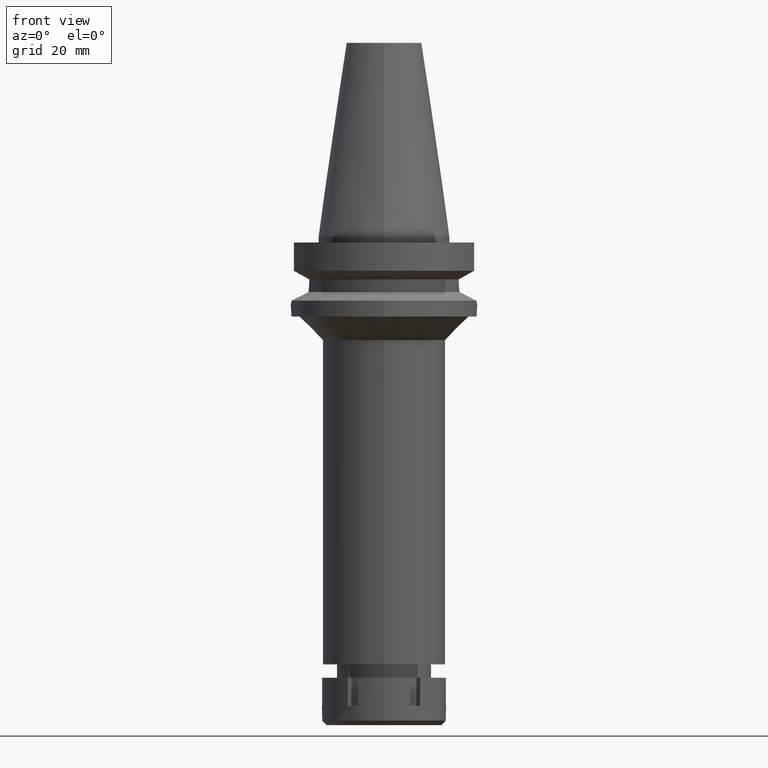
[diagram: clean part render]
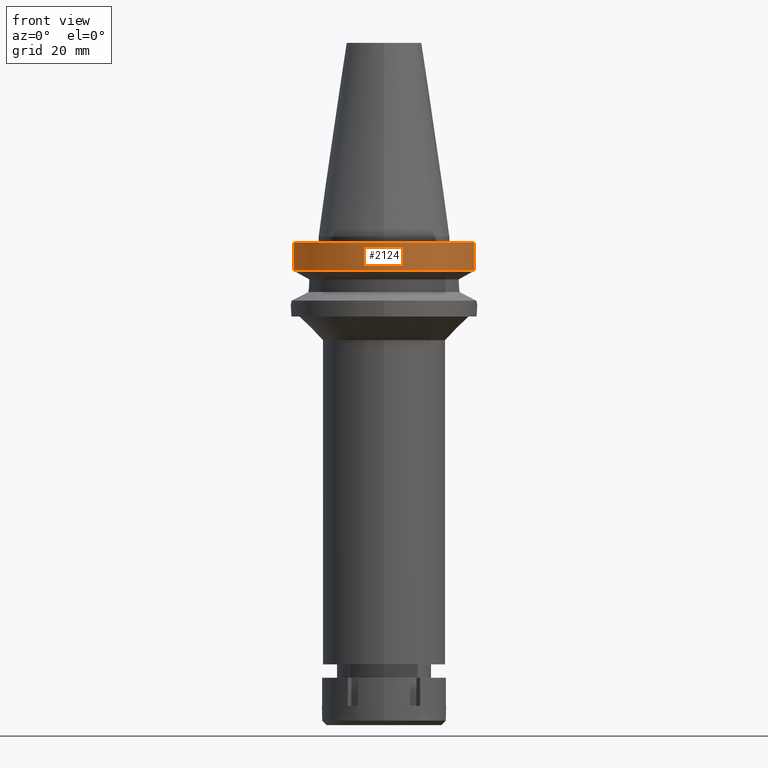
[diagram: same view with one face highlighted and labeled with its STEP entity id]
A machine part, front view. The second image highlights one B-rep face of the part: STEP entity #2124.
In plain terms, the highlighted cylindrical surface (partial cylindrical patch) has radius 31.5 mm, axis along (0, 0, -1).
Its self-contained STEP definition (entity closure, byte-faithful):
#275 = DIRECTION ( 'NONE',  ( 0.0000000000000000000, 0.0000000000000000000, -1.000000000000000000 ) ) ;
#556 = DIRECTION ( 'NONE',  ( 0.0000000000000000000, -1.000000000000000000, 0.0000000000000000000 ) ) ;
#604 = CYLINDRICAL_SURFACE ( 'NONE', #2040, 31.50000000000000000 ) ;
#607 = VERTEX_POINT ( 'NONE', #2176 ) ;
#668 = DIRECTION ( 'NONE',  ( -1.145023312779999569E-07, -4.331741411846998158E-07, -0.9999999999998997469 ) ) ;
#676 = DIRECTION ( 'NONE',  ( 0.0000000000000000000, 0.0000000000000000000, 1.000000000000000000 ) ) ;
#747 = LINE ( 'NONE', #2729, #2969 ) ;
#846 = CARTESIAN_POINT ( 'NONE',  ( 0.0000000000000000000, 2.161746529854999700E-14, 76.52000000000001023 ) ) ;
#934 = EDGE_CURVE ( 'NONE', #607, #1590, #3200, .T. ) ;
#952 = CARTESIAN_POINT ( 'NONE',  ( -30.45402291358000113, -8.049999278195999253, -11.56551215380000031 ) ) ;
#1157 = AXIS2_PLACEMENT_3D ( 'NONE', #3121, #2866, #2269 ) ;
#1203 = CARTESIAN_POINT ( 'NONE',  ( 0.0000000000000000000, 1.065333950388000029E-14, -11.56550565266999975 ) ) ;
#1254 = CIRCLE ( 'NONE', #2848, 31.50000000000000000 ) ;
#1571 = DIRECTION ( 'NONE',  ( 1.994621289529988906E-08, -7.545894673464957228E-08, 0.9999999999999968914 ) ) ;
#1576 = VERTEX_POINT ( 'NONE', #3273 ) ;
#1590 = VERTEX_POINT ( 'NONE', #2720 ) ;
#1803 = EDGE_CURVE ( 'NONE', #607, #1576, #1982, .T. ) ;
#1897 = VERTEX_POINT ( 'NONE', #952 ) ;
#1982 = CIRCLE ( 'NONE', #1157, 31.50000000000000000 ) ;
#2030 = VECTOR ( 'NONE', #668, 999.9999999999998863 ) ;
#2040 = AXIS2_PLACEMENT_3D ( 'NONE', #846, #275, #556 ) ;
#2061 = ORIENTED_EDGE ( 'NONE', *, *, #2288, .T. ) ;
#2062 = CARTESIAN_POINT ( 'NONE',  ( 30.45402272279000044, -8.050000000000000711, -2.000000000000000000 ) ) ;
#2124 = ADVANCED_FACE ( 'NONE', ( #2239 ), #604, .T. ) ;
#2176 = CARTESIAN_POINT ( 'NONE',  ( 30.45402272279000044, -8.050000000000000711, -2.000000000000000000 ) ) ;
#2182 = EDGE_LOOP ( 'NONE', ( #2957, #2061, #2351, #2356 ) ) ;
#2239 = FACE_OUTER_BOUND ( 'NONE', #2182, .T. ) ;
#2269 = DIRECTION ( 'NONE',  ( 0.0000000000000000000, -1.000000000000000000, 0.0000000000000000000 ) ) ;
#2288 = EDGE_CURVE ( 'NONE', #1897, #1590, #1254, .T. ) ;
#2351 = ORIENTED_EDGE ( 'NONE', *, *, #934, .F. ) ;
#2356 = ORIENTED_EDGE ( 'NONE', *, *, #1803, .T. ) ;
#2359 = DIRECTION ( 'NONE',  ( 0.0000000000000000000, -1.000000000000000000, 0.0000000000000000000 ) ) ;
#2720 = CARTESIAN_POINT ( 'NONE',  ( 30.45402272279000044, -8.049999999999000622, -11.56550565266999975 ) ) ;
#2729 = CARTESIAN_POINT ( 'NONE',  ( -30.45402291358000113, -8.049999278195999253, -11.56551215380000031 ) ) ;
#2848 = AXIS2_PLACEMENT_3D ( 'NONE', #1203, #676, #2359 ) ;
#2866 = DIRECTION ( 'NONE',  ( 0.0000000000000000000, 0.0000000000000000000, -1.000000000000000000 ) ) ;
#2957 = ORIENTED_EDGE ( 'NONE', *, *, #2962, .F. ) ;
#2962 = EDGE_CURVE ( 'NONE', #1897, #1576, #747, .T. ) ;
#2969 = VECTOR ( 'NONE', #1571, 1000.000000000000227 ) ;
#3121 = CARTESIAN_POINT ( 'NONE',  ( 0.0000000000000000000, 2.161746529854999700E-14, -2.000000000000000000 ) ) ;
#3200 = LINE ( 'NONE', #2062, #2030 ) ;
#3273 = CARTESIAN_POINT ( 'NONE',  ( -30.45402272279000044, -8.050000000000000711, -2.000000000000000000 ) ) ;